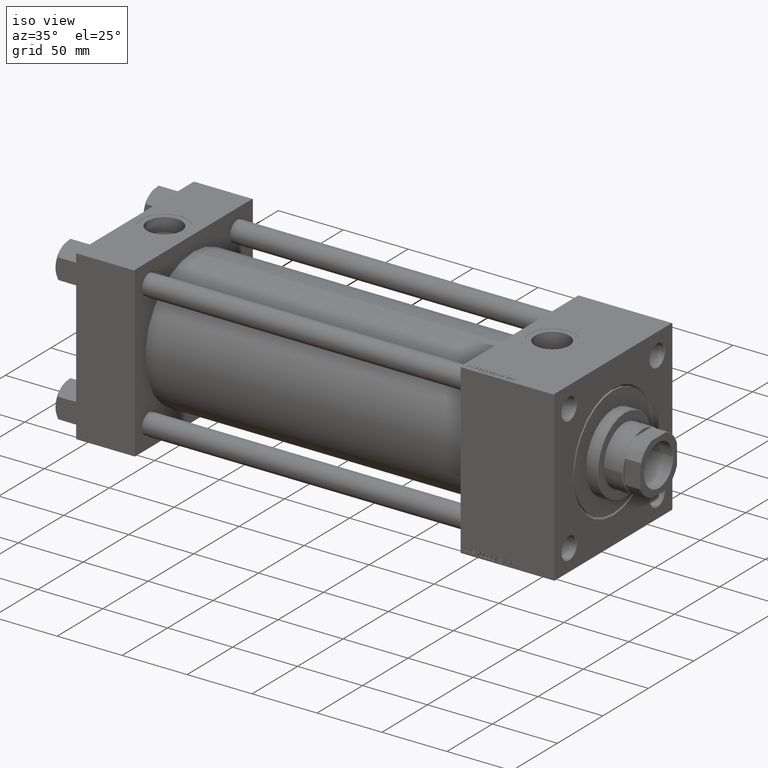
[diagram: clean part render]
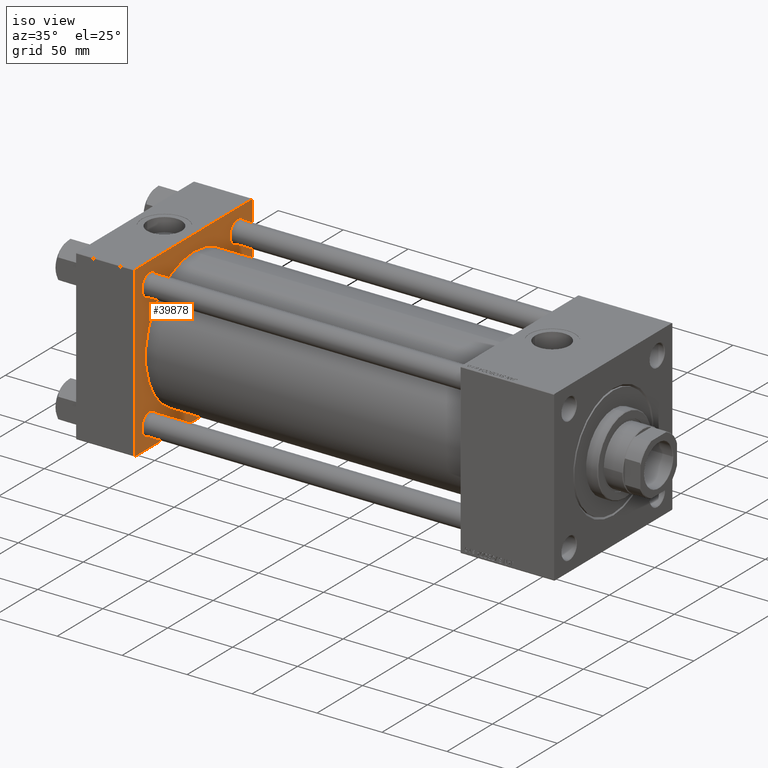
[diagram: same view with one face highlighted and labeled with its STEP entity id]
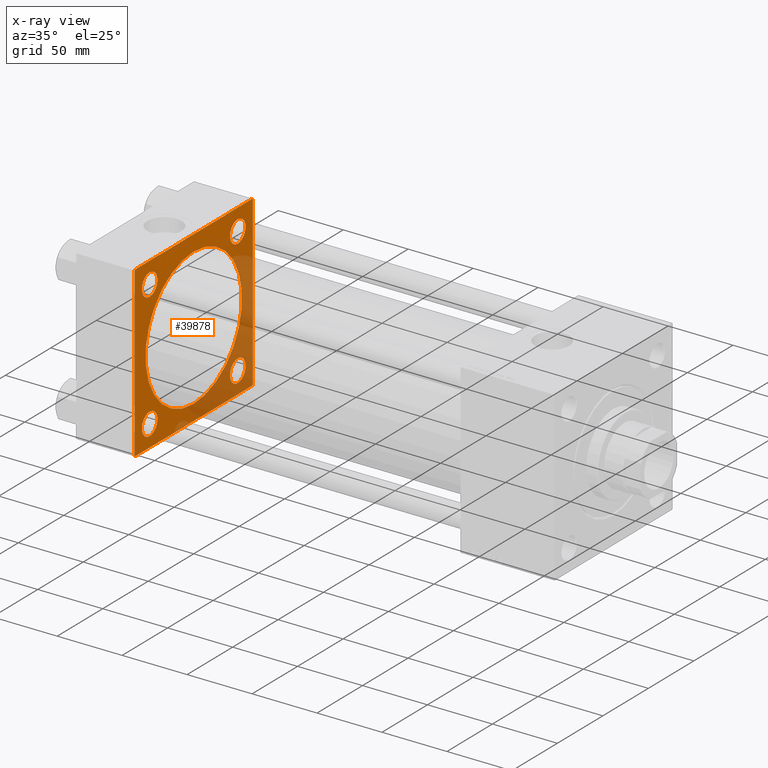
[diagram: x-ray of the same camera — body ghosted, the highlighted face saturated]
A machine part, iso view. The second image highlights one B-rep face of the part: STEP entity #39878.
The next image is the same camera in x-ray: the body ghosted, the highlighted face saturated — about 32% of this face is hidden behind the body in this view.
In plain terms, the highlighted planar face has unit normal (-1, 0, 0).
Its self-contained STEP definition (entity closure, byte-faithful):
#450 = EDGE_LOOP ( 'NONE', ( #25519, #12645 ) ) ;
#792 = EDGE_CURVE ( 'NONE', #1074, #6235, #1860, .T. ) ;
#1074 = VERTEX_POINT ( 'NONE', #41998 ) ;
#1222 = CARTESIAN_POINT ( 'NONE',  ( 44.99999999999998579, -2.602085213965210642E-15, 0.000000000000000000 ) ) ;
#1860 = LINE ( 'NONE', #14418, #41871 ) ;
#1970 = VERTEX_POINT ( 'NONE', #11404 ) ;
#2735 = ORIENTED_EDGE ( 'NONE', *, *, #30871, .T. ) ;
#2751 = CIRCLE ( 'NONE', #31369, 8.499999999999952038 ) ;
#3005 = CIRCLE ( 'NONE', #38974, 8.499999999999952038 ) ;
#3498 = LINE ( 'NONE', #18875, #49987 ) ;
#3978 = FACE_BOUND ( 'NONE', #450, .T. ) ;
#3997 = EDGE_LOOP ( 'NONE', ( #24761, #40411 ) ) ;
#4284 = CARTESIAN_POINT ( 'NONE',  ( 45.00000000000000000, -65.00000000000000000, 65.00000000000000000 ) ) ;
#4568 = EDGE_LOOP ( 'NONE', ( #34736, #5284, #47033, #11170, #37821, #40360, #35735, #8863 ) ) ;
#4695 = CARTESIAN_POINT ( 'NONE',  ( 45.00000000000000000, 48.45000000000000995, 48.45000000000001705 ) ) ;
#5130 = CIRCLE ( 'NONE', #45215, 8.499999999999952038 ) ;
#5284 = ORIENTED_EDGE ( 'NONE', *, *, #47167, .T. ) ;
#5829 = VECTOR ( 'NONE', #29660, 1000.000000000000000 ) ;
#5839 = CARTESIAN_POINT ( 'NONE',  ( 44.99999999999998579, -2.602085213965210642E-15, 0.000000000000000000 ) ) ;
#5974 = CIRCLE ( 'NONE', #11664, 8.499999999999952038 ) ;
#6235 = VERTEX_POINT ( 'NONE', #35691 ) ;
#6452 = LINE ( 'NONE', #34111, #37047 ) ;
#6815 = EDGE_CURVE ( 'NONE', #29802, #15045, #18214, .T. ) ;
#6953 = VERTEX_POINT ( 'NONE', #14275 ) ;
#7143 = VERTEX_POINT ( 'NONE', #25409 ) ;
#7376 = EDGE_CURVE ( 'NONE', #6235, #25700, #6452, .T. ) ;
#7820 = FACE_BOUND ( 'NONE', #25023, .T. ) ;
#7884 = VECTOR ( 'NONE', #19912, 1000.000000000000000 ) ;
#8183 = AXIS2_PLACEMENT_3D ( 'NONE', #5839, #16865, #32497 ) ;
#8423 = EDGE_CURVE ( 'NONE', #1970, #33392, #28934, .T. ) ;
#8564 = DIRECTION ( 'NONE',  ( 0.000000000000000000, 0.000000000000000000, 1.000000000000000000 ) ) ;
#8750 = EDGE_CURVE ( 'NONE', #11518, #45635, #2751, .T. ) ;
#8863 = ORIENTED_EDGE ( 'NONE', *, *, #22002, .T. ) ;
#9210 = DIRECTION ( 'NONE',  ( 0.000000000000000000, 0.000000000000000000, 1.000000000000000000 ) ) ;
#9502 = CARTESIAN_POINT ( 'NONE',  ( 45.00000000000000000, -64.49999999999994316, -65.00000000000000000 ) ) ;
#10014 = CARTESIAN_POINT ( 'NONE',  ( 45.00000000000000000, -64.49999999999994316, -65.00000000000000000 ) ) ;
#10383 = CIRCLE ( 'NONE', #32443, 8.499999999999952038 ) ;
#11169 = PLANE ( 'NONE',  #22123 ) ;
#11170 = ORIENTED_EDGE ( 'NONE', *, *, #40859, .T. ) ;
#11388 = CARTESIAN_POINT ( 'NONE',  ( 45.00000000000000000, -48.44999999999999574, -48.45000000000003126 ) ) ;
#11404 = CARTESIAN_POINT ( 'NONE',  ( 45.00000000000000000, 48.45000000000000995, 39.95000000000005969 ) ) ;
#11518 = VERTEX_POINT ( 'NONE', #28715 ) ;
#11664 = AXIS2_PLACEMENT_3D ( 'NONE', #36483, #43649, #8564 ) ;
#11728 = AXIS2_PLACEMENT_3D ( 'NONE', #4695, #20319, #35940 ) ;
#12139 = CARTESIAN_POINT ( 'NONE',  ( 45.00000000000000000, 65.00000000000000000, -64.99999999999998579 ) ) ;
#12645 = ORIENTED_EDGE ( 'NONE', *, *, #28440, .T. ) ;
#12739 = EDGE_CURVE ( 'NONE', #28749, #19278, #44568, .T. ) ;
#12784 = DIRECTION ( 'NONE',  ( -1.000000000000000000, 0.000000000000000000, -0.000000000000000000 ) ) ;
#12939 = CIRCLE ( 'NONE', #45679, 8.499999999999952038 ) ;
#13489 = CARTESIAN_POINT ( 'NONE',  ( 45.00000000000000000, -48.44999999999999574, 56.94999999999998153 ) ) ;
#13769 = ORIENTED_EDGE ( 'NONE', *, *, #6815, .F. ) ;
#14159 = EDGE_CURVE ( 'NONE', #7143, #32782, #5130, .T. ) ;
#14275 = CARTESIAN_POINT ( 'NONE',  ( 45.00000000000000000, -65.00000000000000000, -64.49999999999991473 ) ) ;
#14300 = EDGE_CURVE ( 'NONE', #32782, #7143, #5974, .T. ) ;
#14418 = CARTESIAN_POINT ( 'NONE',  ( 45.00000000000000000, 65.00000000000000000, 65.00000000000001421 ) ) ;
#15045 = VERTEX_POINT ( 'NONE', #22445 ) ;
#15496 = VERTEX_POINT ( 'NONE', #9502 ) ;
#16865 = DIRECTION ( 'NONE',  ( 1.000000000000000000, -0.000000000000000000, 0.000000000000000000 ) ) ;
#17139 = DIRECTION ( 'NONE',  ( -1.000000000000000000, 0.000000000000000000, -0.000000000000000000 ) ) ;
#17195 = CIRCLE ( 'NONE', #8183, 53.00000000000000711 ) ;
#17487 = DIRECTION ( 'NONE',  ( 0.000000000000000000, -1.000000000000000000, -1.067522139062650425E-16 ) ) ;
#18214 = CIRCLE ( 'NONE', #37860, 53.00000000000000711 ) ;
#18832 = DIRECTION ( 'NONE',  ( -1.000000000000000000, 0.000000000000000000, -0.000000000000000000 ) ) ;
#18875 = CARTESIAN_POINT ( 'NONE',  ( 45.00000000000000000, 65.00000000000000000, -64.49999999999995737 ) ) ;
#19140 = DIRECTION ( 'NONE',  ( 0.000000000000000000, 0.000000000000000000, 1.000000000000000000 ) ) ;
#19278 = VERTEX_POINT ( 'NONE', #13489 ) ;
#19912 = DIRECTION ( 'NONE',  ( 0.000000000000000000, 0.000000000000000000, -1.000000000000000000 ) ) ;
#20317 = VERTEX_POINT ( 'NONE', #22447 ) ;
#20319 = DIRECTION ( 'NONE',  ( -1.000000000000000000, 0.000000000000000000, -0.000000000000000000 ) ) ;
#20479 = CARTESIAN_POINT ( 'NONE',  ( 45.00000000000000000, -48.44999999999999574, 48.45000000000003126 ) ) ;
#20850 = AXIS2_PLACEMENT_3D ( 'NONE', #36601, #12784, #36849 ) ;
#20930 = LINE ( 'NONE', #4284, #7884 ) ;
#21597 = EDGE_CURVE ( 'NONE', #20317, #15496, #32129, .T. ) ;
#21968 = DIRECTION ( 'NONE',  ( -0.000000000000000000, 0.7071067811865474617, 0.7071067811865474617 ) ) ;
#22002 = EDGE_CURVE ( 'NONE', #6953, #15496, #33083, .T. ) ;
#22123 = AXIS2_PLACEMENT_3D ( 'NONE', #47261, #26785, #42407 ) ;
#22445 = CARTESIAN_POINT ( 'NONE',  ( 44.99999999999998579, 3.888542821515762466E-15, -53.00000000000000711 ) ) ;
#22447 = CARTESIAN_POINT ( 'NONE',  ( 45.00000000000000000, 64.49999999999997158, -64.99999999999998579 ) ) ;
#22719 = DIRECTION ( 'NONE',  ( -1.000000000000000000, 0.000000000000000000, -0.000000000000000000 ) ) ;
#23860 = CARTESIAN_POINT ( 'NONE',  ( 45.00000000000000000, 65.00000000000000000, 64.49999999999998579 ) ) ;
#24276 = DIRECTION ( 'NONE',  ( 1.000000000000000000, -0.000000000000000000, 0.000000000000000000 ) ) ;
#24290 = DIRECTION ( 'NONE',  ( 0.000000000000000000, -0.7071067811865474617, 0.7071067811865474617 ) ) ;
#24733 = CARTESIAN_POINT ( 'NONE',  ( 45.00000000000000000, 48.45000000000000995, 56.94999999999996732 ) ) ;
#24761 = ORIENTED_EDGE ( 'NONE', *, *, #14300, .T. ) ;
#25023 = EDGE_LOOP ( 'NONE', ( #13769, #29906 ) ) ;
#25409 = CARTESIAN_POINT ( 'NONE',  ( 45.00000000000000000, -48.44999999999999574, -39.95000000000007390 ) ) ;
#25519 = ORIENTED_EDGE ( 'NONE', *, *, #12739, .T. ) ;
#25700 = VERTEX_POINT ( 'NONE', #35744 ) ;
#26785 = DIRECTION ( 'NONE',  ( -1.000000000000000000, 0.000000000000000000, -0.000000000000000000 ) ) ;
#27736 = EDGE_CURVE ( 'NONE', #25700, #6953, #20930, .T. ) ;
#27784 = EDGE_CURVE ( 'NONE', #33392, #1970, #3005, .T. ) ;
#28440 = EDGE_CURVE ( 'NONE', #19278, #28749, #10383, .T. ) ;
#28715 = CARTESIAN_POINT ( 'NONE',  ( 45.00000000000000000, 48.45000000000000995, -56.94999999999996732 ) ) ;
#28749 = VERTEX_POINT ( 'NONE', #43469 ) ;
#28934 = CIRCLE ( 'NONE', #11728, 8.499999999999952038 ) ;
#29201 = CARTESIAN_POINT ( 'NONE',  ( 45.00000000000000000, -48.44999999999999574, -56.94999999999998153 ) ) ;
#29660 = DIRECTION ( 'NONE',  ( 0.000000000000000000, 0.000000000000000000, -1.000000000000000000 ) ) ;
#29802 = VERTEX_POINT ( 'NONE', #30726 ) ;
#29805 = CARTESIAN_POINT ( 'NONE',  ( 45.00000000000000000, 48.45000000000000995, -39.95000000000005969 ) ) ;
#29906 = ORIENTED_EDGE ( 'NONE', *, *, #44488, .F. ) ;
#30131 = EDGE_LOOP ( 'NONE', ( #42194, #46300 ) ) ;
#30169 = CARTESIAN_POINT ( 'NONE',  ( 45.00000000000000000, 65.00000000000000000, 65.00000000000001421 ) ) ;
#30647 = FACE_BOUND ( 'NONE', #42399, .T. ) ;
#30726 = CARTESIAN_POINT ( 'NONE',  ( 44.99999999999998579, -2.602085213965210642E-15, 53.00000000000000711 ) ) ;
#30833 = VERTEX_POINT ( 'NONE', #49129 ) ;
#30871 = EDGE_CURVE ( 'NONE', #45635, #11518, #12939, .T. ) ;
#30886 = FACE_BOUND ( 'NONE', #30131, .T. ) ;
#31369 = AXIS2_PLACEMENT_3D ( 'NONE', #49117, #22719, #45536 ) ;
#31396 = ORIENTED_EDGE ( 'NONE', *, *, #8750, .T. ) ;
#32129 = LINE ( 'NONE', #12139, #50378 ) ;
#32443 = AXIS2_PLACEMENT_3D ( 'NONE', #20479, #17139, #9210 ) ;
#32497 = DIRECTION ( 'NONE',  ( 0.000000000000000000, 0.000000000000000000, 1.000000000000000000 ) ) ;
#32705 = CARTESIAN_POINT ( 'NONE',  ( 45.00000000000000000, 48.45000000000000995, 48.45000000000001705 ) ) ;
#32782 = VERTEX_POINT ( 'NONE', #29201 ) ;
#33083 = LINE ( 'NONE', #10014, #37309 ) ;
#33392 = VERTEX_POINT ( 'NONE', #24733 ) ;
#34111 = CARTESIAN_POINT ( 'NONE',  ( 45.00000000000000000, -65.00000000000000000, 64.50000000000000000 ) ) ;
#34736 = ORIENTED_EDGE ( 'NONE', *, *, #21597, .F. ) ;
#35691 = CARTESIAN_POINT ( 'NONE',  ( 45.00000000000000000, -64.49999999999997158, 65.00000000000000000 ) ) ;
#35735 = ORIENTED_EDGE ( 'NONE', *, *, #27736, .T. ) ;
#35744 = CARTESIAN_POINT ( 'NONE',  ( 45.00000000000000000, -65.00000000000000000, 64.50000000000000000 ) ) ;
#35940 = DIRECTION ( 'NONE',  ( 0.000000000000000000, 0.000000000000000000, 1.000000000000000000 ) ) ;
#36226 = VERTEX_POINT ( 'NONE', #23860 ) ;
#36483 = CARTESIAN_POINT ( 'NONE',  ( 45.00000000000000000, -48.44999999999999574, -48.45000000000003126 ) ) ;
#36601 = CARTESIAN_POINT ( 'NONE',  ( 45.00000000000000000, -48.44999999999999574, 48.45000000000003126 ) ) ;
#36804 = DIRECTION ( 'NONE',  ( 0.000000000000000000, 0.000000000000000000, 1.000000000000000000 ) ) ;
#36816 = DIRECTION ( 'NONE',  ( 0.000000000000000000, 0.000000000000000000, 1.000000000000000000 ) ) ;
#36849 = DIRECTION ( 'NONE',  ( 0.000000000000000000, 0.000000000000000000, 1.000000000000000000 ) ) ;
#37047 = VECTOR ( 'NONE', #38206, 1000.000000000000000 ) ;
#37309 = VECTOR ( 'NONE', #48704, 1000.000000000000000 ) ;
#37821 = ORIENTED_EDGE ( 'NONE', *, *, #792, .T. ) ;
#37860 = AXIS2_PLACEMENT_3D ( 'NONE', #1222, #24276, #36816 ) ;
#37866 = DIRECTION ( 'NONE',  ( -1.000000000000000000, 0.000000000000000000, -0.000000000000000000 ) ) ;
#38206 = DIRECTION ( 'NONE',  ( -0.000000000000000000, -0.7071067811865672237, -0.7071067811865279218 ) ) ;
#38974 = AXIS2_PLACEMENT_3D ( 'NONE', #32705, #40642, #36804 ) ;
#39046 = DIRECTION ( 'NONE',  ( 0.000000000000000000, -1.000000000000000000, -1.067522139062650425E-16 ) ) ;
#39072 = FACE_BOUND ( 'NONE', #3997, .T. ) ;
#39397 = CARTESIAN_POINT ( 'NONE',  ( 45.00000000000000000, 64.49999999999997158, 65.00000000000001421 ) ) ;
#39878 = ADVANCED_FACE ( 'NONE', ( #39072, #30647, #3978, #30886, #7820, #46262 ), #11169, .F. ) ;
#40360 = ORIENTED_EDGE ( 'NONE', *, *, #7376, .T. ) ;
#40411 = ORIENTED_EDGE ( 'NONE', *, *, #14159, .T. ) ;
#40642 = DIRECTION ( 'NONE',  ( -1.000000000000000000, 0.000000000000000000, -0.000000000000000000 ) ) ;
#40859 = EDGE_CURVE ( 'NONE', #36226, #1074, #43748, .T. ) ;
#41746 = VECTOR ( 'NONE', #24290, 1000.000000000000114 ) ;
#41871 = VECTOR ( 'NONE', #17487, 1000.000000000000000 ) ;
#41998 = CARTESIAN_POINT ( 'NONE',  ( 45.00000000000000000, 64.49999999999997158, 65.00000000000001421 ) ) ;
#42194 = ORIENTED_EDGE ( 'NONE', *, *, #8423, .T. ) ;
#42399 = EDGE_LOOP ( 'NONE', ( #31396, #2735 ) ) ;
#42407 = DIRECTION ( 'NONE',  ( -0.000000000000000000, 0.000000000000000000, 1.000000000000000000 ) ) ;
#43469 = CARTESIAN_POINT ( 'NONE',  ( 45.00000000000000000, -48.44999999999999574, 39.95000000000007390 ) ) ;
#43649 = DIRECTION ( 'NONE',  ( -1.000000000000000000, 0.000000000000000000, -0.000000000000000000 ) ) ;
#43748 = LINE ( 'NONE', #39397, #41746 ) ;
#44488 = EDGE_CURVE ( 'NONE', #15045, #29802, #17195, .T. ) ;
#44568 = CIRCLE ( 'NONE', #20850, 8.499999999999952038 ) ;
#45215 = AXIS2_PLACEMENT_3D ( 'NONE', #11388, #18832, #45996 ) ;
#45536 = DIRECTION ( 'NONE',  ( 0.000000000000000000, 0.000000000000000000, 1.000000000000000000 ) ) ;
#45635 = VERTEX_POINT ( 'NONE', #29805 ) ;
#45679 = AXIS2_PLACEMENT_3D ( 'NONE', #46536, #37866, #19140 ) ;
#45996 = DIRECTION ( 'NONE',  ( 0.000000000000000000, 0.000000000000000000, 1.000000000000000000 ) ) ;
#46262 = FACE_OUTER_BOUND ( 'NONE', #4568, .T. ) ;
#46300 = ORIENTED_EDGE ( 'NONE', *, *, #27784, .T. ) ;
#46536 = CARTESIAN_POINT ( 'NONE',  ( 45.00000000000000000, 48.45000000000000995, -48.45000000000001705 ) ) ;
#47033 = ORIENTED_EDGE ( 'NONE', *, *, #47197, .F. ) ;
#47167 = EDGE_CURVE ( 'NONE', #20317, #30833, #3498, .T. ) ;
#47197 = EDGE_CURVE ( 'NONE', #36226, #30833, #49384, .T. ) ;
#47261 = CARTESIAN_POINT ( 'NONE',  ( 45.00000000000000000, 0.000000000000000000, 0.000000000000000000 ) ) ;
#48704 = DIRECTION ( 'NONE',  ( 0.000000000000000000, 0.7071067811865279218, -0.7071067811865671127 ) ) ;
#49117 = CARTESIAN_POINT ( 'NONE',  ( 45.00000000000000000, 48.45000000000000995, -48.45000000000001705 ) ) ;
#49129 = CARTESIAN_POINT ( 'NONE',  ( 45.00000000000000000, 65.00000000000000000, -64.49999999999995737 ) ) ;
#49384 = LINE ( 'NONE', #30169, #5829 ) ;
#49987 = VECTOR ( 'NONE', #21968, 1000.000000000000114 ) ;
#50378 = VECTOR ( 'NONE', #39046, 1000.000000000000000 ) ;